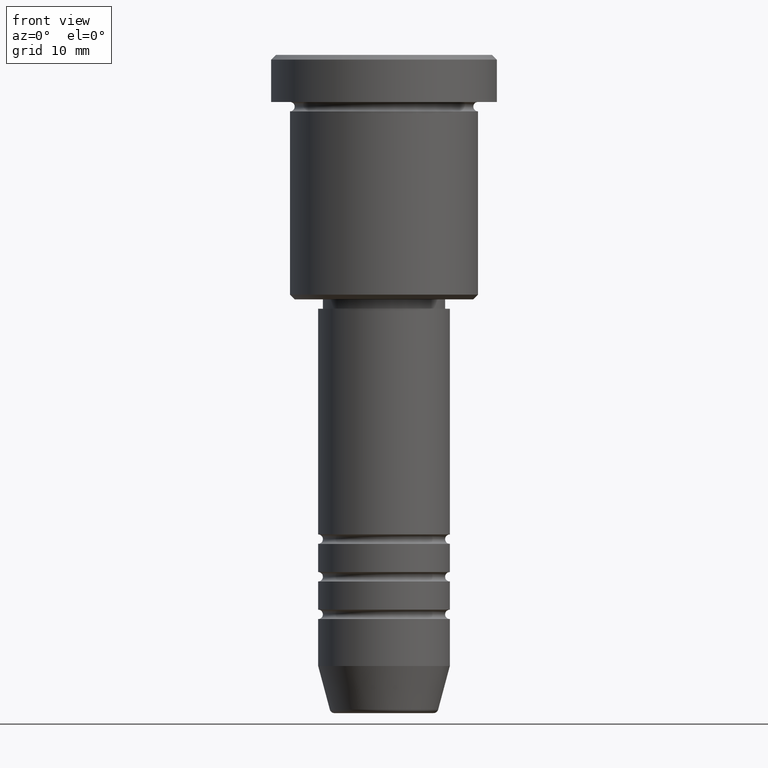
[diagram: clean part render]
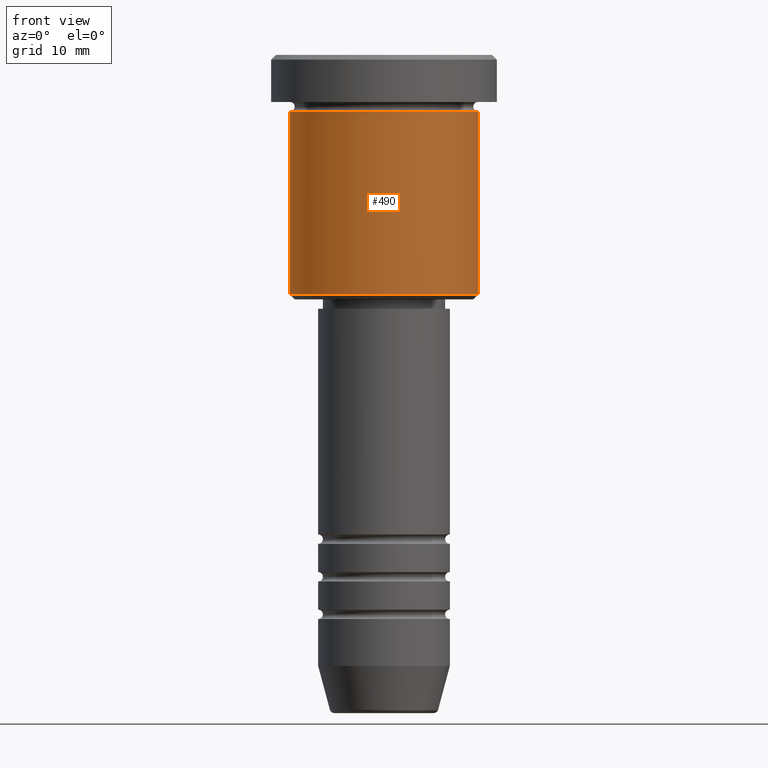
[diagram: same view with one face highlighted and labeled with its STEP entity id]
A machine part, front view. The second image highlights one B-rep face of the part: STEP entity #490.
In plain terms, the highlighted cylindrical surface (partial cylindrical patch) has radius 10 mm, axis along (-0, -0, 1).
Its self-contained STEP definition (entity closure, byte-faithful):
#16 = EDGE_CURVE ( 'NONE', #827, #826, #425, .T. ) ;
#20 = AXIS2_PLACEMENT_3D ( 'NONE', #57, #966, #477 ) ;
#57 = CARTESIAN_POINT ( 'NONE',  ( 0.000000000000000000, 0.000000000000000000, -25.49999999999998934 ) ) ;
#80 = EDGE_LOOP ( 'NONE', ( #689, #1103, #503, #438 ) ) ;
#148 = VERTEX_POINT ( 'NONE', #973 ) ;
#162 = VECTOR ( 'NONE', #911, 1000.000000000000000 ) ;
#201 = CARTESIAN_POINT ( 'NONE',  ( 10.00000000000000000, 0.000000000000000000, -6.000000000000000000 ) ) ;
#228 = EDGE_CURVE ( 'NONE', #148, #915, #1074, .T. ) ;
#258 = AXIS2_PLACEMENT_3D ( 'NONE', #393, #597, #1130 ) ;
#262 = CARTESIAN_POINT ( 'NONE',  ( -9.999999999999998224, 1.224646799147353059E-15, 0.000000000000000000 ) ) ;
#393 = CARTESIAN_POINT ( 'NONE',  ( 0.000000000000000000, 0.000000000000000000, -6.000000000000000000 ) ) ;
#425 = LINE ( 'NONE', #432, #162 ) ;
#432 = CARTESIAN_POINT ( 'NONE',  ( 9.999999999999998224, 0.000000000000000000, 0.000000000000000000 ) ) ;
#438 = ORIENTED_EDGE ( 'NONE', *, *, #589, .F. ) ;
#445 = CARTESIAN_POINT ( 'NONE',  ( 0.000000000000000000, 0.000000000000000000, 0.000000000000000000 ) ) ;
#477 = DIRECTION ( 'NONE',  ( -1.000000000000000000, 0.000000000000000000, 0.000000000000000000 ) ) ;
#490 = ADVANCED_FACE ( 'NONE', ( #713 ), #817, .T. ) ;
#503 = ORIENTED_EDGE ( 'NONE', *, *, #16, .T. ) ;
#581 = VECTOR ( 'NONE', #926, 1000.000000000000000 ) ;
#589 = EDGE_CURVE ( 'NONE', #915, #826, #1108, .T. ) ;
#597 = DIRECTION ( 'NONE',  ( -0.000000000000000000, -0.000000000000000000, 1.000000000000000000 ) ) ;
#650 = EDGE_CURVE ( 'NONE', #148, #827, #1043, .T. ) ;
#689 = ORIENTED_EDGE ( 'NONE', *, *, #228, .F. ) ;
#713 = FACE_OUTER_BOUND ( 'NONE', #80, .T. ) ;
#742 = CARTESIAN_POINT ( 'NONE',  ( 9.999999999999998224, 0.000000000000000000, -25.49999999999998934 ) ) ;
#817 = CYLINDRICAL_SURFACE ( 'NONE', #1042, 9.999999999999998224 ) ;
#826 = VERTEX_POINT ( 'NONE', #201 ) ;
#827 = VERTEX_POINT ( 'NONE', #742 ) ;
#907 = DIRECTION ( 'NONE',  ( 1.000000000000000000, 0.000000000000000000, 0.000000000000000000 ) ) ;
#911 = DIRECTION ( 'NONE',  ( -0.000000000000000000, -0.000000000000000000, 1.000000000000000000 ) ) ;
#915 = VERTEX_POINT ( 'NONE', #980 ) ;
#926 = DIRECTION ( 'NONE',  ( -0.000000000000000000, -0.000000000000000000, 1.000000000000000000 ) ) ;
#966 = DIRECTION ( 'NONE',  ( -0.000000000000000000, -0.000000000000000000, 1.000000000000000000 ) ) ;
#973 = CARTESIAN_POINT ( 'NONE',  ( -9.999999999999998224, 1.224646799147353059E-15, -25.49999999999998934 ) ) ;
#980 = CARTESIAN_POINT ( 'NONE',  ( -10.00000000000000000, 1.224646799147353256E-15, -6.000000000000000000 ) ) ;
#1042 = AXIS2_PLACEMENT_3D ( 'NONE', #445, #1172, #907 ) ;
#1043 = CIRCLE ( 'NONE', #20, 9.999999999999998224 ) ;
#1074 = LINE ( 'NONE', #262, #581 ) ;
#1103 = ORIENTED_EDGE ( 'NONE', *, *, #650, .T. ) ;
#1108 = CIRCLE ( 'NONE', #258, 10.00000000000000000 ) ;
#1130 = DIRECTION ( 'NONE',  ( 1.000000000000000000, 0.000000000000000000, 0.000000000000000000 ) ) ;
#1172 = DIRECTION ( 'NONE',  ( -0.000000000000000000, -0.000000000000000000, 1.000000000000000000 ) ) ;